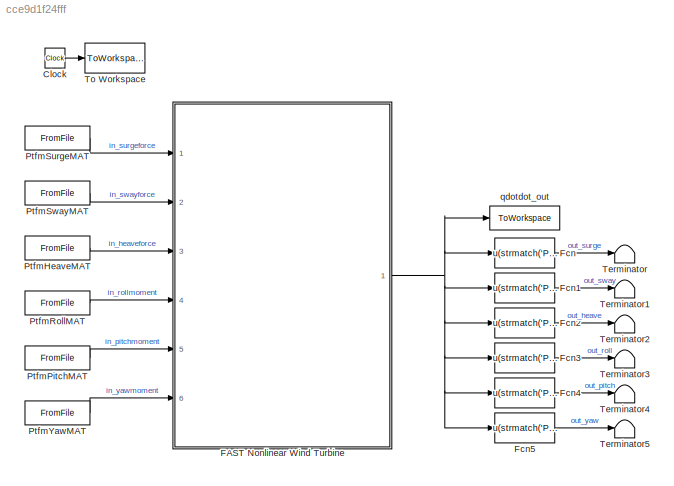
MODEL slx_cce9d1f24fff
KIND model
CONFIG AbsTol = auto
CONFIG EnableMultiTasking = on
CONFIG FixedStep = DT
CONFIG MaxStep = DT
CONFIG MinStep = auto
CONFIG RelTol = 1e-3
CONFIG SampleTimeConstraint = Unconstrained
CONFIG SolverName = ode4
CONFIG StartTime = 0.0
CONFIG StopTime = TMax
BLOCK [Clock] Clock
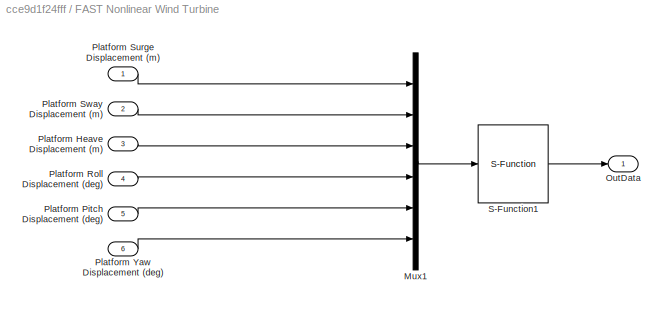
BLOCK [SubSystem] FAST Nonlinear Wind Turbine
  Ports = [6, 1]
  RequestExecContextInheritance = off
BLOCK [Mux] FAST Nonlinear Wind Turbine/Mux1
  DisplayOption = bar
  Inputs = 6
  Ports = [6, 1]
BLOCK [Outport] FAST Nonlinear Wind Turbine/OutData
BLOCK [Inport] FAST Nonlinear Wind Turbine/Platform Heave Displacement (m)
  Port = 3
BLOCK [Inport] FAST Nonlinear Wind Turbine/Platform Pitch Displacement (deg)
  Port = 5
BLOCK [Inport] FAST Nonlinear Wind Turbine/Platform Roll Displacement (deg)
  Port = 4
BLOCK [Inport] FAST Nonlinear Wind Turbine/Platform Surge Displacement (m)
BLOCK [Inport] FAST Nonlinear Wind Turbine/Platform Sway Displacement (m)
  Port = 2
BLOCK [Inport] FAST Nonlinear Wind Turbine/Platform Yaw Displacement (deg)
  Port = 6
BLOCK [S-Function] FAST Nonlinear Wind Turbine/S-Function1
  EnableBusSupport = off
  FunctionName = FAST_SFunc
  Parameters = FAST_InputFileName, TMax, 0
  Ports = [1, 1]
  SFcnIsStateOwnerBlock = off
  SFunctionDeploymentMode = off
BLOCK [Fcn] Fcn
  Commented = on
  Expr = u(strmatch('PtfmSurge',OutList))
  NameLocation = top
BLOCK [Fcn] Fcn1
  Commented = on
  Expr = u(strmatch('PtfmSway',OutList))
  NameLocation = top
BLOCK [Fcn] Fcn2
  Commented = on
  Expr = u(strmatch('PtfmHeave',OutList))
  NameLocation = top
BLOCK [Fcn] Fcn3
  Commented = on
  Expr = u(strmatch('PtfmRoll',OutList))
  NameLocation = top
BLOCK [Fcn] Fcn4
  Commented = on
  Expr = u(strmatch('PtfmPitch',OutList))
  NameLocation = top
BLOCK [Fcn] Fcn5
  Commented = on
  Expr = u(strmatch('PtfmYaw',OutList))
  NameLocation = top
BLOCK [FromFile] PtfmHeaveMAT
  FileName = ../report_data/MAT/hydro/PtfmHeave_5MW_OC4Semi_WSt_WavesWN.mat
BLOCK [FromFile] PtfmPitchMAT
  FileName = ../report_data/MAT/hydro/PtfmPitch_5MW_OC4Semi_WSt_WavesWN.mat
BLOCK [FromFile] PtfmRollMAT
  FileName = ../report_data/MAT/hydro/PtfmRoll_5MW_OC4Semi_WSt_WavesWN.mat
BLOCK [FromFile] PtfmSurgeMAT
  FileName = ../report_data/MAT/hydro/PtfmSurge_5MW_OC4Semi_WSt_WavesWN.mat
BLOCK [FromFile] PtfmSwayMAT
  FileName = ../report_data/MAT/hydro/PtfmSway_5MW_OC4Semi_WSt_WavesWN.mat
BLOCK [FromFile] PtfmYawMAT
  FileName = ../report_data/MAT/hydro/PtfmYaw_5MW_OC4Semi_WSt_WavesWN.mat
BLOCK [Terminator] Terminator
  Commented = on
BLOCK [Terminator] Terminator1
  Commented = on
BLOCK [Terminator] Terminator2
  Commented = on
BLOCK [Terminator] Terminator3
  Commented = on
BLOCK [Terminator] Terminator4
  Commented = on
BLOCK [Terminator] Terminator5
  Commented = on
BLOCK [ToWorkspace] To Workspace
  MaxDataPoints = inf
  Ports = [1]
  SampleTime = -1
  VariableName = Time
BLOCK [ToWorkspace] qdotdot_out
  MaxDataPoints = inf
  Ports = [1]
  SampleTime = -1
  VariableName = OutData
LINE Clock:1 -> To Workspace:1
LINE FAST Nonlinear Wind Turbine/Mux1:1 -> FAST Nonlinear Wind Turbine/S-Function1:1
LINE FAST Nonlinear Wind Turbine/Platform Heave Displacement (m):1 -> FAST Nonlinear Wind Turbine/Mux1:3
LINE FAST Nonlinear Wind Turbine/Platform Pitch Displacement (deg):1 -> FAST Nonlinear Wind Turbine/Mux1:5
LINE FAST Nonlinear Wind Turbine/Platform Roll Displacement (deg):1 -> FAST Nonlinear Wind Turbine/Mux1:4
LINE FAST Nonlinear Wind Turbine/Platform Surge Displacement (m):1 -> FAST Nonlinear Wind Turbine/Mux1:1
LINE FAST Nonlinear Wind Turbine/Platform Sway Displacement (m):1 -> FAST Nonlinear Wind Turbine/Mux1:2
LINE FAST Nonlinear Wind Turbine/Platform Yaw Displacement (deg):1 -> FAST Nonlinear Wind Turbine/Mux1:6
LINE FAST Nonlinear Wind Turbine/S-Function1:1 -> FAST Nonlinear Wind Turbine/OutData:1
NET FAST Nonlinear Wind Turbine:1 -> Fcn1:1, Fcn2:1, Fcn3:1, Fcn4:1, Fcn5:1, Fcn:1, qdotdot_out:1
LINE Fcn1:1 -> Terminator1:1
LINE Fcn2:1 -> Terminator2:1
LINE Fcn3:1 -> Terminator3:1
LINE Fcn4:1 -> Terminator4:1
LINE Fcn5:1 -> Terminator5:1
LINE Fcn:1 -> Terminator:1
LINE PtfmHeaveMAT:1 -> FAST Nonlinear Wind Turbine:3
LINE PtfmPitchMAT:1 -> FAST Nonlinear Wind Turbine:5
LINE PtfmRollMAT:1 -> FAST Nonlinear Wind Turbine:4
LINE PtfmSurgeMAT:1 -> FAST Nonlinear Wind Turbine:1
LINE PtfmSwayMAT:1 -> FAST Nonlinear Wind Turbine:2
LINE PtfmYawMAT:1 -> FAST Nonlinear Wind Turbine:6
note: NET lines group one-source signal fan-out (src -> all destinations, sorted); 1:1 wires keep LINE
